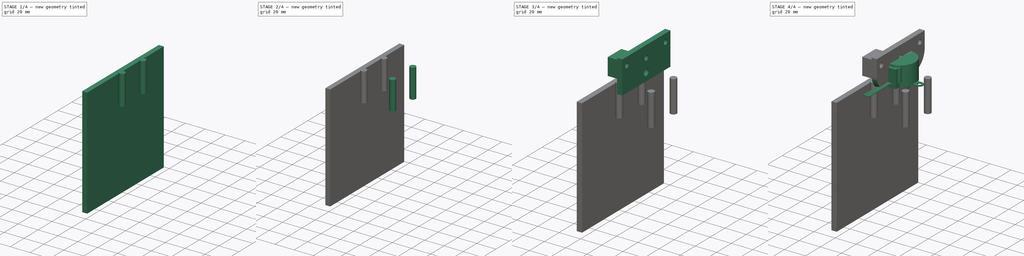
[diagram: build sequence overview — one tinted view per stage of 4, left to right]
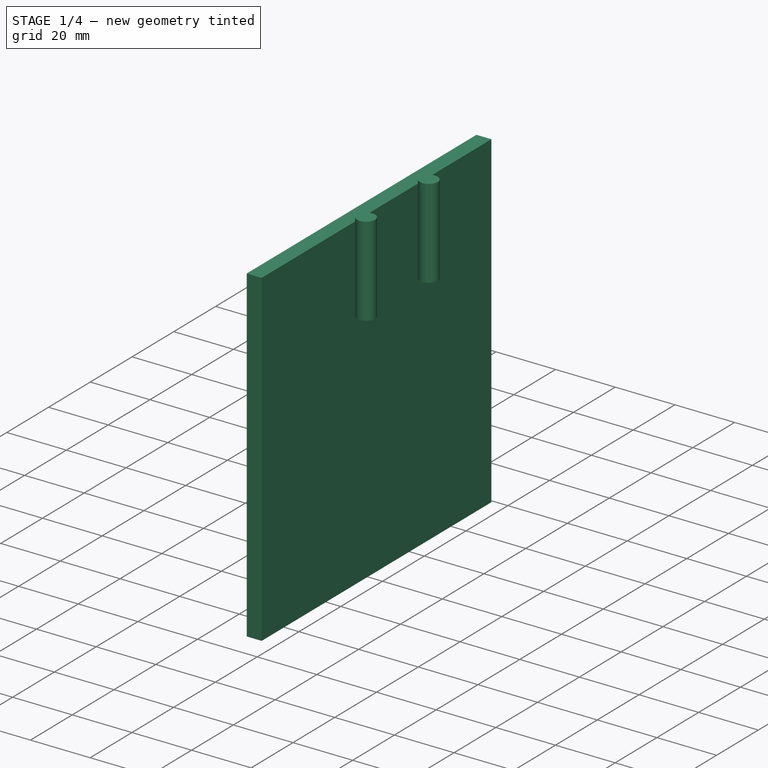
[diagram: stage 1 of 4 — iso view after this stage's code; geometry added in this stage tinted green]
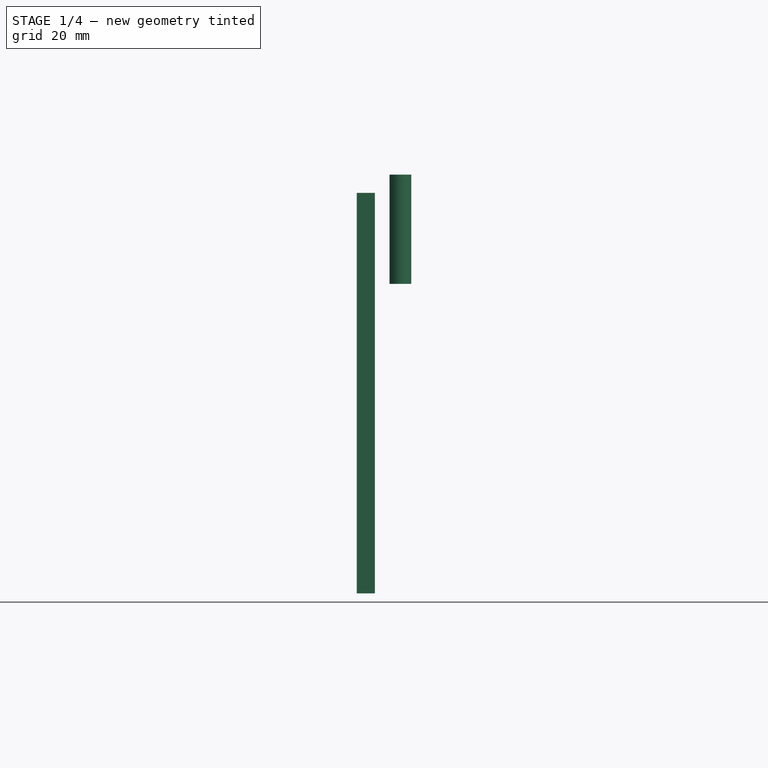
[diagram: stage 1 of 4 — front view after this stage's code; geometry added in this stage tinted green]
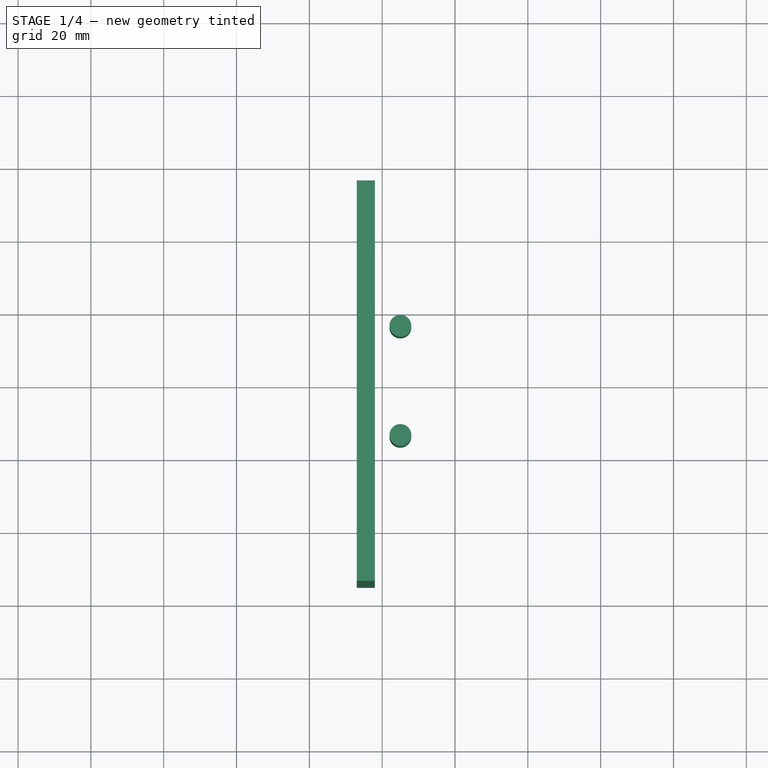
[diagram: stage 1 of 4 — top view after this stage's code; geometry added in this stage tinted green]
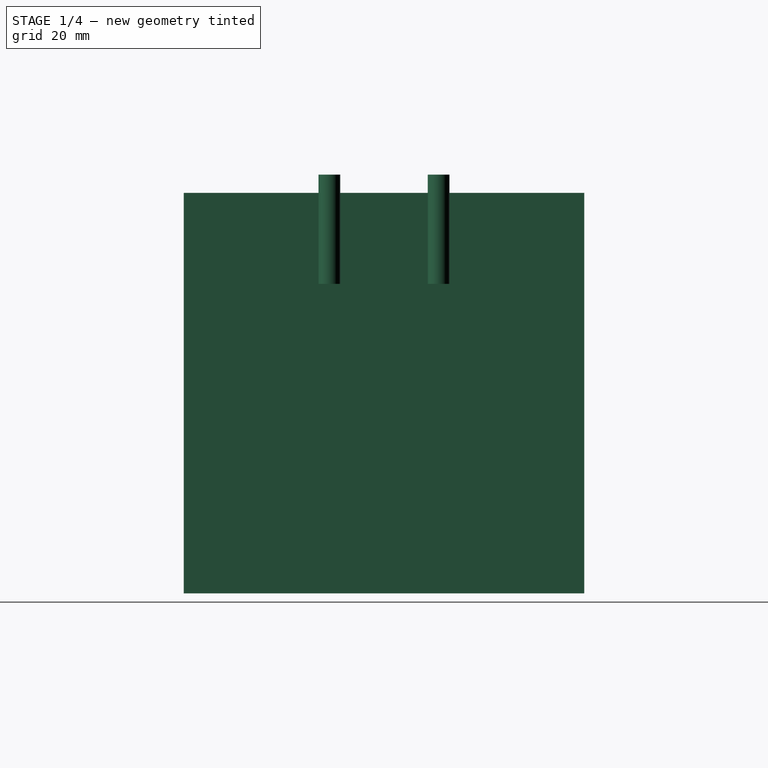
[diagram: stage 1 of 4 — right view after this stage's code; geometry added in this stage tinted green]
FCSTD DOCUMENT  (FreeCAD 0.20R29603 (Git))
Label: LEnsFocus_GearDesign_GT2
License: All rights reserved
LicenseURL: http://en.wikipedia.org/wiki/All_rights_reserved
objects: Part::Feature×13, Sketcher::SketchObject×5, Part::Cylinder×4, App::Part×3, PartDesign::Pocket×3, PartDesign::Body×2, PartDesign::Pad×2, PartDesign::FeatureBase×1, PartDesign::Fillet×1, Part::Compound×1, Part::Box×1
note: 39 computed .brp shape members not serialized (recipe doc carries the construction recipe); baked Part::Feature solids carry a one-line shape summary decoded from their .brp

FEATURE [Part::Cylinder] Cylinder002
  Angle = 360
  AttacherType = Attacher::AttachEngine3D
  FirstAngle = 0
  Height = 30
  Placement = pos=(-15,-15,-30) rot=(0,0,1;0rad)
  Radius = 3
  SecondAngle = 0
FEATURE [Part::Cylinder] Cylinder003
  Angle = 360
  AttacherType = Attacher::AttachEngine3D
  FirstAngle = 0
  Height = 30
  Placement = pos=(-15,15,-30) rot=(0,0,1;0rad)
  Radius = 3
  SecondAngle = 0
FEATURE [App::Part] Part
  Origin = -> Origin
  Placement = pos=(-27,-20,-36) rot=(0,0,1;0rad)
FEATURE [Part::Box] Box  label="Cube"
  AttacherType = Attacher::AttachEngine3D
  Height = 110
  Length = 5
  Placement = pos=(-27,-55,-115) rot=(0,0,1;0rad)
  Width = 110
FEATURE [Part::Feature] Part__Feature009  label="_DIN 912-M6x12"
  Placement = pos=(-18,40,-20) rot=(0,1,0;3.14159rad)
  shape: bbox 18 x 10.82 x 10.82 mm, 22 faces (baked)
FEATURE [Part::Feature] Part__Feature010  label="_DIN 912-M6x013"
  Placement = pos=(-18,-40,-20) rot=(0,1,0;3.14159rad)
  shape: bbox 18 x 10.82 x 10.82 mm, 22 faces (baked)
FEATURE [Part::Feature] Part__Feature011  label="_DIN 912-M6x014"
  Placement = pos=(-18,40,-100) rot=(0,1,0;3.14159rad)
  shape: bbox 18 x 10.82 x 10.82 mm, 22 faces (baked)
FEATURE [Part::Feature] Part__Feature012  label="_DIN 912-M6x015"
  Placement = pos=(-18,-40,-100) rot=(0,1,0;3.14159rad)
  shape: bbox 18 x 10.82 x 10.82 mm, 22 faces (baked)
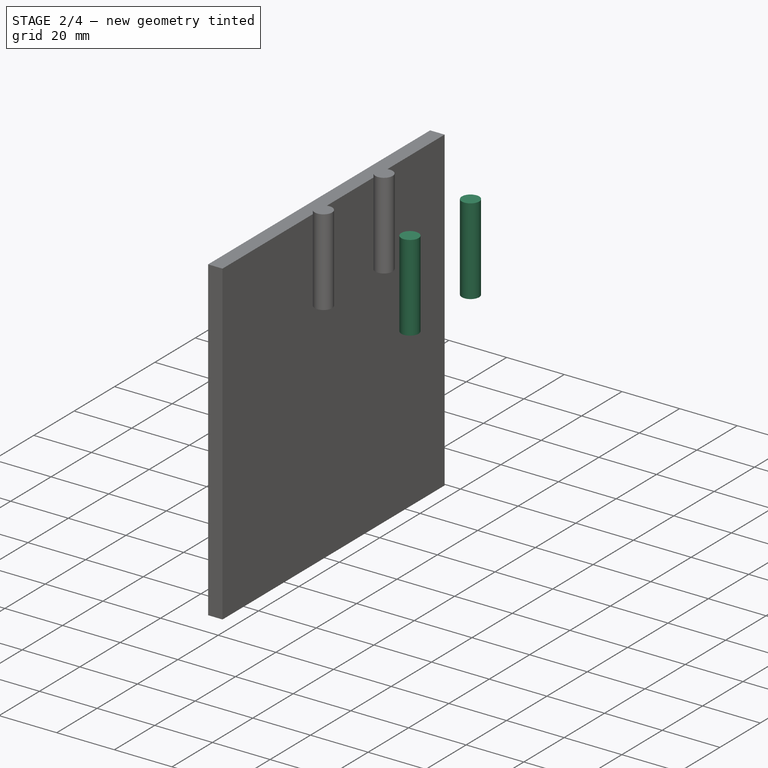
[diagram: stage 2 of 4 — iso view after this stage's code; geometry added in this stage tinted green]
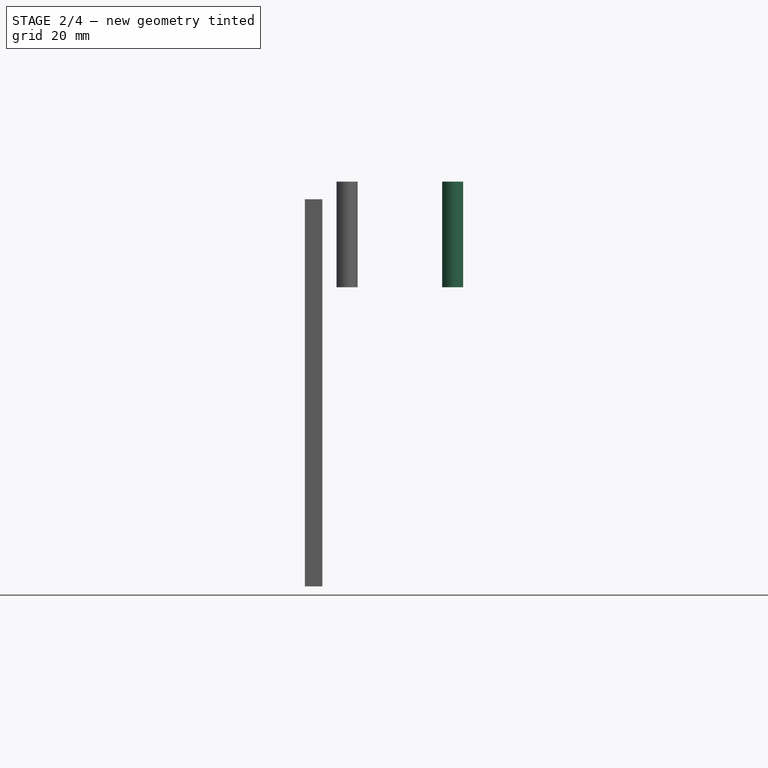
[diagram: stage 2 of 4 — front view after this stage's code; geometry added in this stage tinted green]
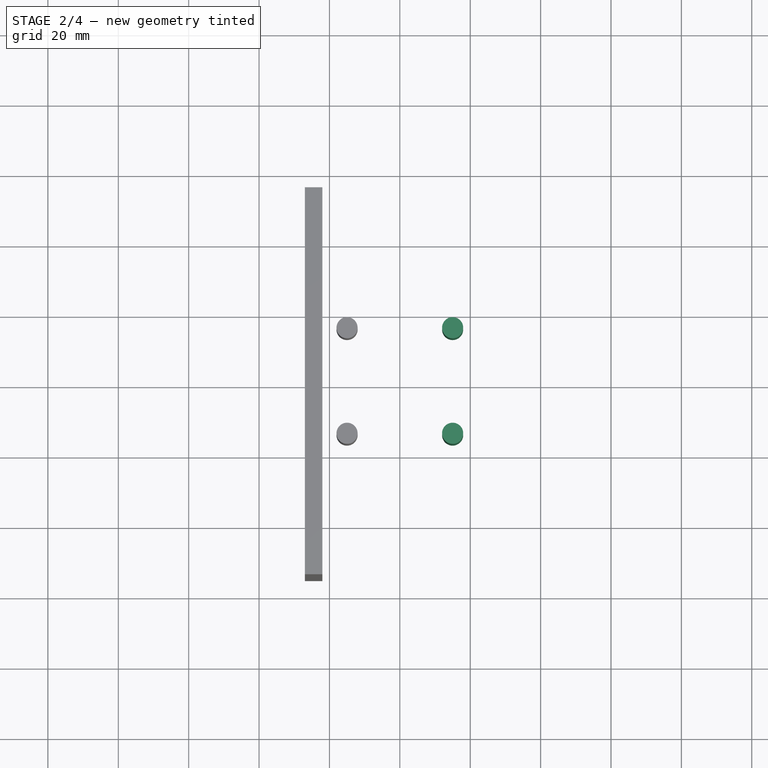
[diagram: stage 2 of 4 — top view after this stage's code; geometry added in this stage tinted green]
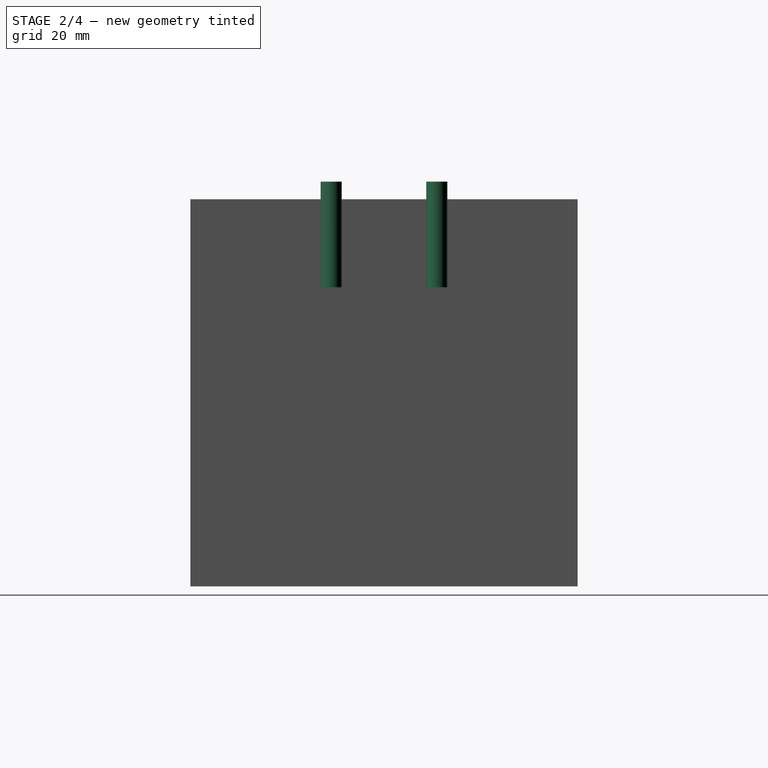
[diagram: stage 2 of 4 — right view after this stage's code; geometry added in this stage tinted green]
FEATURE [PartDesign::Body] Body  label="SystemBracket"
  Group = -> [Sketch,Pad001,Sketch001,Pad002,Sketch002,Pocket,Sketch003,Pocket001,Sketch004,Pocket002,Fillet]
  Origin = -> Origin005
  Placement = pos=(56,0,0) rot=(0,0,1;0rad)
  Tip = -> Fillet
FEATURE [Part::Feature] Part__Feature006  label="LensGear_128"
  Placement = pos=(0,0,41) rot=(0,0,1;0rad)
  shape: bbox 82 x 82 x 14 mm, 781 faces (baked)
FEATURE [Part::Feature] Part__Feature007  label="_8byj_48_bracket001 (Solid)001"
  Placement = pos=(77,1.2e-14,30) rot=(0.57735,0.57735,0.57735;2.0944rad)
  shape: bbox 25 x 60 x 15 mm, 530 faces (baked)
FEATURE [Part::Feature] Part__Feature008  label="Pocket003"
  Placement = pos=(0,-4e-15,-31) rot=(1,0,0;3.14159rad)
  shape: bbox 40 x 106 x 28 mm, 39 faces (baked)
FEATURE [Part::Cylinder] Cylinder
  Angle = 360
  AttacherType = Attacher::AttachEngine3D
  FirstAngle = 0
  Height = 30
  Placement = pos=(15,15,-30) rot=(0,0,1;0rad)
  Radius = 3
  SecondAngle = 0
FEATURE [Part::Cylinder] Cylinder001
  Angle = 360
  AttacherType = Attacher::AttachEngine3D
  FirstAngle = 0
  Height = 30
  Placement = pos=(15,-15,-30) rot=(0,0,1;0rad)
  Radius = 3
  SecondAngle = 0
FEATURE [Part::Compound] Compound  label="Distances"
  Links = -> [Cylinder,Cylinder001,Cylinder002,Cylinder003]
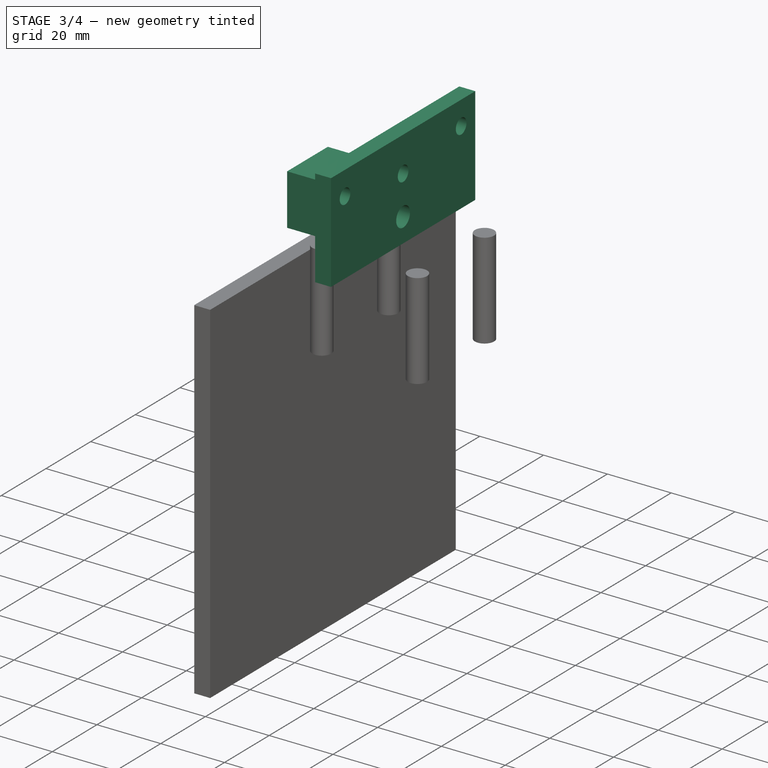
[diagram: stage 3 of 4 — iso view after this stage's code; geometry added in this stage tinted green]
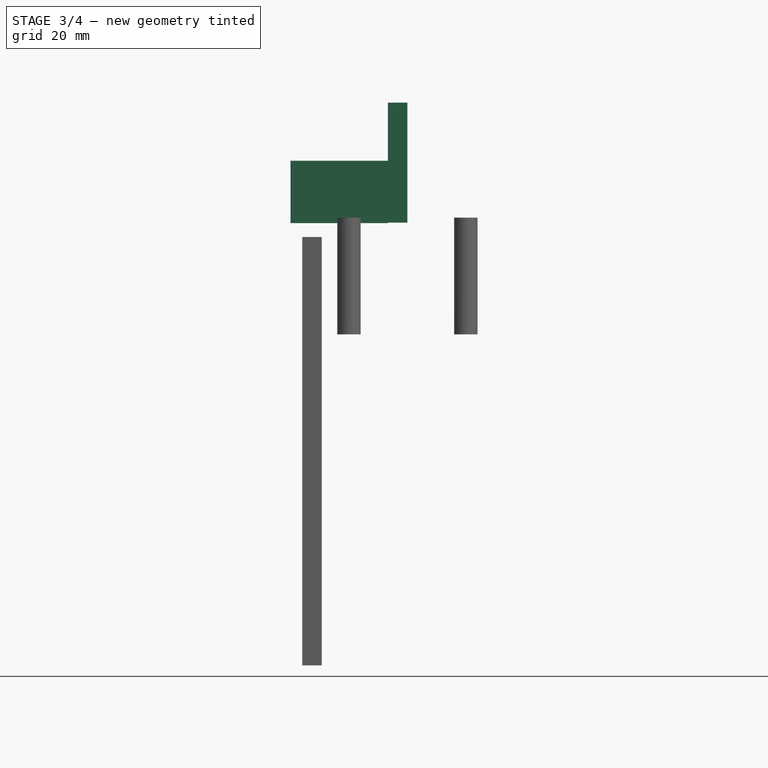
[diagram: stage 3 of 4 — front view after this stage's code; geometry added in this stage tinted green]
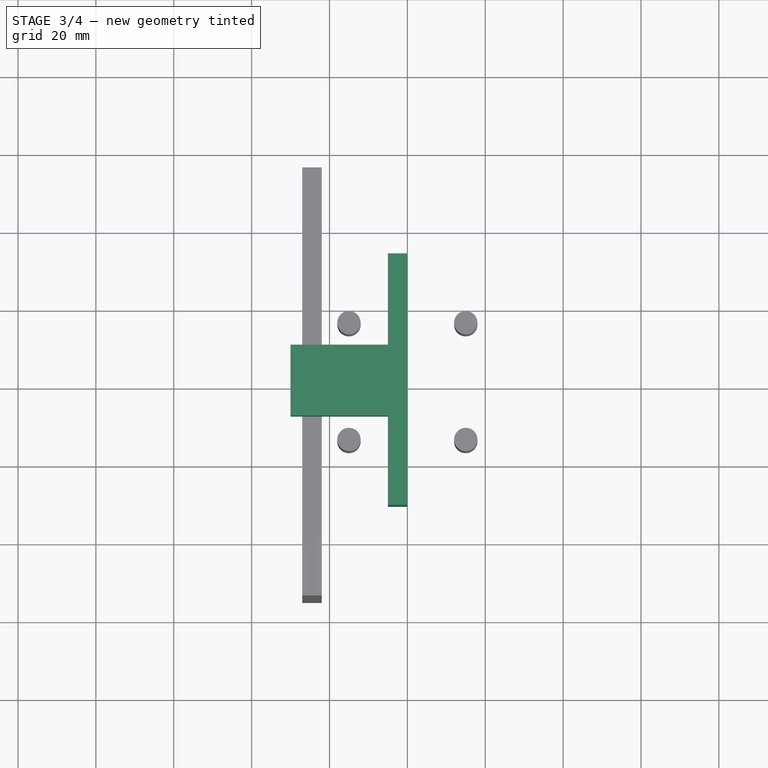
[diagram: stage 3 of 4 — top view after this stage's code; geometry added in this stage tinted green]
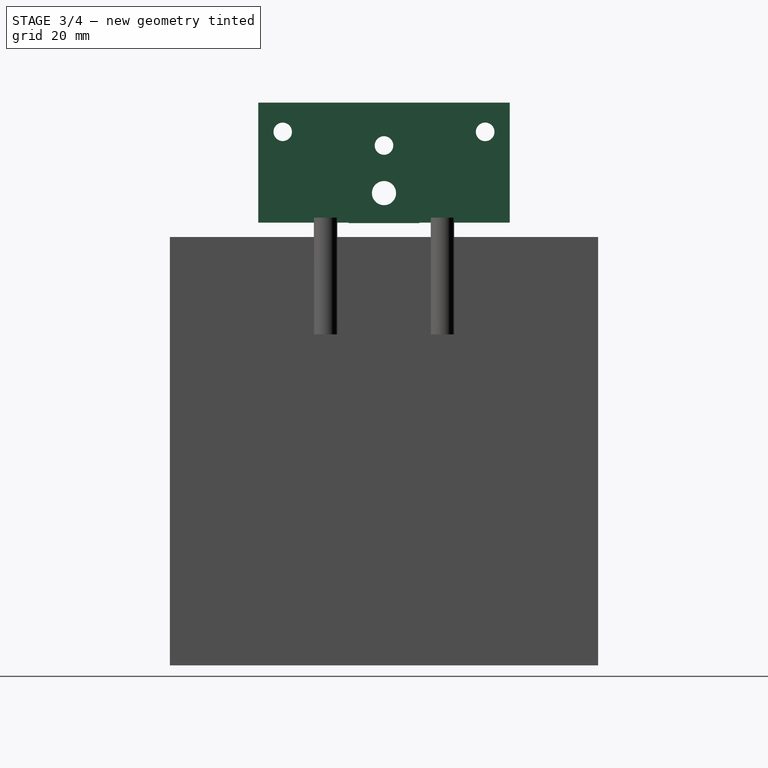
[diagram: stage 3 of 4 — right view after this stage's code; geometry added in this stage tinted green]
FEATURE [PartDesign::Body] Body002  label="Motor"
  BaseFeature = -> Part__Feature002
  Group = -> [BaseFeature]
  Origin = -> Origin003
  Placement = pos=(77.25,1.3e-14,30.5) rot=(0.707107,-0.707107,0;3.14159rad)
  Tip = -> BaseFeature
FEATURE [Part::Feature] Part__Feature003  label="M4x0.7X5mm - flat-tip Set screw"
  Placement = pos=(5.00861,-2e-15,-9.25) rot=(0.707107,0,0.707107;3.14159rad)
  shape: bbox 5.403 x 4.007 x 4.626 mm, 32 faces (baked)
FEATURE [Part::Feature] Part__Feature004  label="M4x0.7X5mm - flat-tip Set screw001"
  Placement = pos=(1.426e-11,5.00861,-9.25) rot=(-1,0,0;1.5708rad)
  shape: bbox 4.626 x 5.403 x 4.007 mm, 32 faces (baked)
FEATURE [Part::Feature] Part__Feature005  label="SOLID"
  shape: bbox 16.01 x 16 x 20 mm, 223 faces (baked)
FEATURE [App::Part] GT2_Timing_Pulley_20T_10mm___Hole_5mm_v4  label="MotorGear_20"
  Group = -> [Part__Feature003,Part__Feature004,Part__Feature005]
  Origin = -> Origin004
  Placement = pos=(69.25,0,46.25) rot=(0,0,1;0rad)
FEATURE [Sketcher::SketchObject] Sketch
  FullyConstrained = false
  MapMode = 5
  Placement = pos=(0,0,0) rot=(-0.57735,0.57735,0.57735;4.18879rad)
  Support = -> [YZ_Plane005]
  sketch-geometry (7):
    g0: LineSegment StartX=-32.2959 StartY=29.5203 StartZ=0 EndX=32.2959 EndY=29.5203 EndZ=0
    g1: LineSegment StartX=32.2959 StartY=29.5203 StartZ=0 EndX=32.2959 EndY=-1.2904 EndZ=0
    g2: LineSegment StartX=32.2959 StartY=-1.2904 StartZ=0 EndX=-32.2959 EndY=-1.2904 EndZ=0
    g3: LineSegment StartX=-32.2959 StartY=-1.2904 StartZ=0 EndX=-32.2959 EndY=29.5203 EndZ=0
    g4: Circle CenterX=-25.9824 CenterY=22.0203 CenterZ=0 NormalX=0 NormalY=0 NormalZ=1 AngleXU=0 Radius=2.38908
    g5: Circle CenterX=26.0133 CenterY=22.0203 CenterZ=0 NormalX=0 NormalY=0 NormalZ=1 AngleXU=0 Radius=2.36948
    g6: Circle CenterX=0 CenterY=18.5203 CenterZ=0 NormalX=0 NormalY=0 NormalZ=1 AngleXU=0 Radius=2.38908
  constraints (12):
    c: Coincident(g0,g1)
    c: Coincident(g1,g2)
    c: Coincident(g2,g3)
    c: Coincident(g3,g0)
    c: Horizontal(g2)
    c: Vertical(g1)
    c: Vertical(g3)
    c: Symmetric(g0,g0,g-2)
    c: PointOnObject(g6,g-2)
    c: DistanceY(g5,g0) = 7.5
    c: DistanceY(g4,g0) = 7.5
    c: DistanceY(g6,g5) = 3.5
FEATURE [PartDesign::Pad] Pad001
  Direction = (-1,2e-16,-3e-16)
  Length = 5
  Length2 = 100
  Placement = pos=(0,0,0) rot=(0.57735,0.57735,0.57735;2.0944rad)
  Profile = -> Sketch
  Type = 0
FEATURE [Sketcher::SketchObject] Sketch001
  AttachmentOffset = pos=(0,1.2,0) rot=(0,0,1;0rad)
  FullyConstrained = false
  MapMode = 5
  Placement = pos=(-5,2.1e-15,-1.2) rot=(-0.57735,-0.57735,0.57735;2.0944rad)
  Support = -> [Pad001]
  sketch-geometry (4):
    g0: LineSegment StartX=9.1 StartY=-15.7867 StartZ=0 EndX=-9.1 EndY=-15.7867 EndZ=0
    g1: LineSegment StartX=-9.1 StartY=-15.7867 StartZ=0 EndX=-9.1 EndY=0.213265 EndZ=0
    g2: LineSegment StartX=-9.1 StartY=0.213265 StartZ=0 EndX=9.1 EndY=0.213265 EndZ=0
    g3: LineSegment StartX=9.1 StartY=0.213265 StartZ=0 EndX=9.1 EndY=-15.7867 EndZ=0
  constraints (8):
    c: Coincident(g0,g1)
    c: Coincident(g1,g2)
    c: Coincident(g2,g3)
    c: Coincident(g3,g0)
    c: Horizontal(g2)
    c: Vertical(g1)
    c: Vertical(g3)
    c: Symmetric(g0,g0,g-2)
FEATURE [PartDesign::Pad] Pad002
  BaseFeature = -> Pad001
  Direction = (-1,6e-16,-4e-16)
  Length = 25
  Length2 = 100
  Placement = pos=(0,0,0) rot=(0.57735,0.57735,0.57735;2.0944rad)
  Profile = -> Sketch001
  Type = 0
FEATURE [Sketcher::SketchObject] Sketch002
  ExternalGeometry = -> [Pad002]
  FullyConstrained = true
  MapMode = 5
  Placement = pos=(-30,1.32e-14,-1.17e-14) rot=(-0.57735,-0.57735,0.57735;2.0944rad)
  Support = -> [Pad002]
  sketch-geometry (4):
    g0: LineSegment StartX=7.25 StartY=-12.5867 StartZ=0 EndX=-7.25 EndY=-12.5867 EndZ=0
    g1: LineSegment StartX=-7.25 StartY=-12.5867 StartZ=0 EndX=-7.25 EndY=-0.286735 EndZ=0
    g2: LineSegment StartX=-7.25 StartY=-0.286735 StartZ=0 EndX=7.25 EndY=-0.286735 EndZ=0
    g3: LineSegment StartX=7.25 StartY=-0.286735 StartZ=0 EndX=7.25 EndY=-12.5867 EndZ=0
  constraints (11):
    c: Coincident(g0,g1)
    c: Coincident(g1,g2)
    c: Coincident(g2,g3)
    c: Coincident(g3,g0)
    c: Horizontal(g2)
    c: Vertical(g1)
    c: Vertical(g3)
    c: Symmetric(g0,g0,g-2)
    c: DistanceX(g0,g0) = 14.5
    c: DistanceY(g-3,g0) = 2
    c: DistanceY(g0,g2) = 12.3
FEATURE [PartDesign::Pocket] Pocket
  BaseFeature = -> Pad002
  Direction = (1,-7e-16,6e-16)
  Length = 5
  Length2 = 100
  Placement = pos=(0,0,0) rot=(0.57735,0.57735,0.57735;2.0944rad)
  Profile = -> Sketch002
  Type = 0
FEATURE [Sketcher::SketchObject] Sketch003  label="VidaM6"
  ExternalGeometry = -> [Pocket]
  FullyConstrained = true
  MapMode = 5
  Placement = pos=(-25,1.53e-14,-1.08e-14) rot=(-0.57735,-0.57735,0.57735;2.0944rad)
  Support = -> [Pocket]
  sketch-geometry (1):
    g0: Circle CenterX=0 CenterY=-6.28673 CenterZ=0 NormalX=0 NormalY=0 NormalZ=1 AngleXU=0 Radius=3.1
  constraints (3):
    c: PointOnObject(g0,g-2)
    c: DistanceY(g0,g-3) = 6
    c: Diameter(g0) = 6.2
FEATURE [PartDesign::Pocket] Pocket001
  BaseFeature = -> Pocket
  Direction = (1,-8e-16,7e-16)
  Length = 5
  Length2 = 100
  Placement = pos=(0,0,0) rot=(0.57735,0.57735,0.57735;2.0944rad)
  Profile = -> Sketch003
  Type = 1
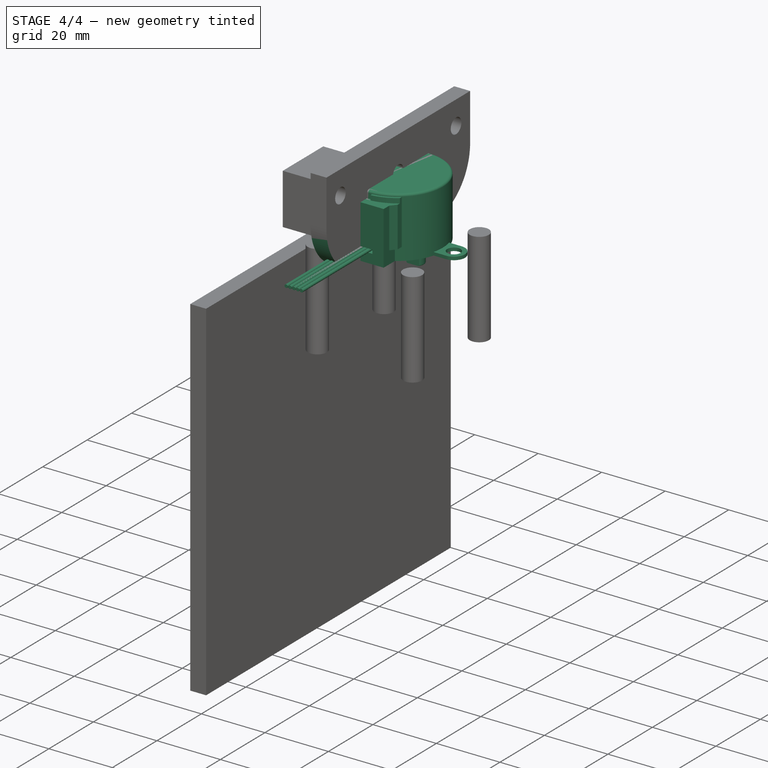
[diagram: stage 4 of 4 — iso view after this stage's code; geometry added in this stage tinted green]
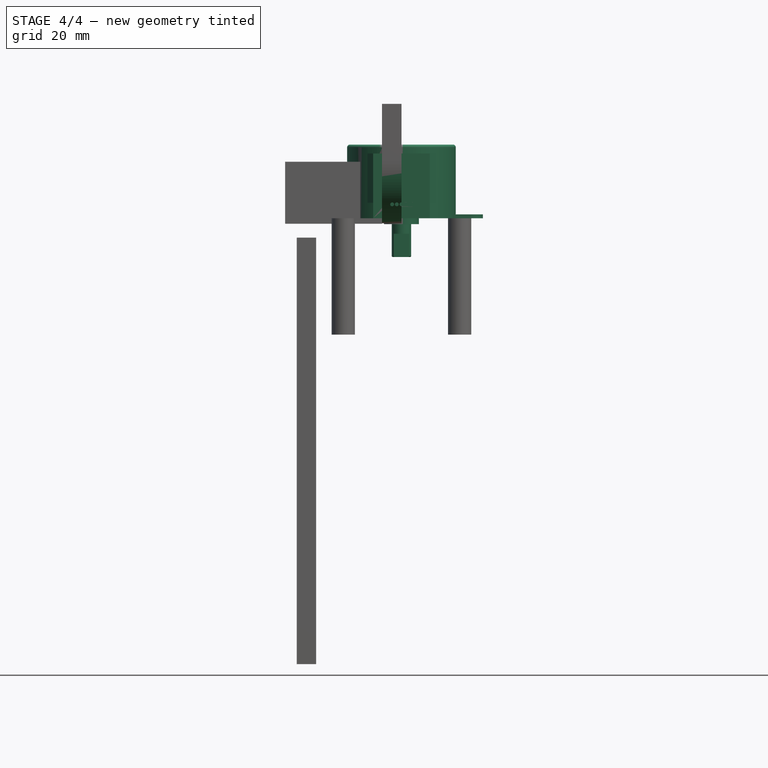
[diagram: stage 4 of 4 — front view after this stage's code; geometry added in this stage tinted green]
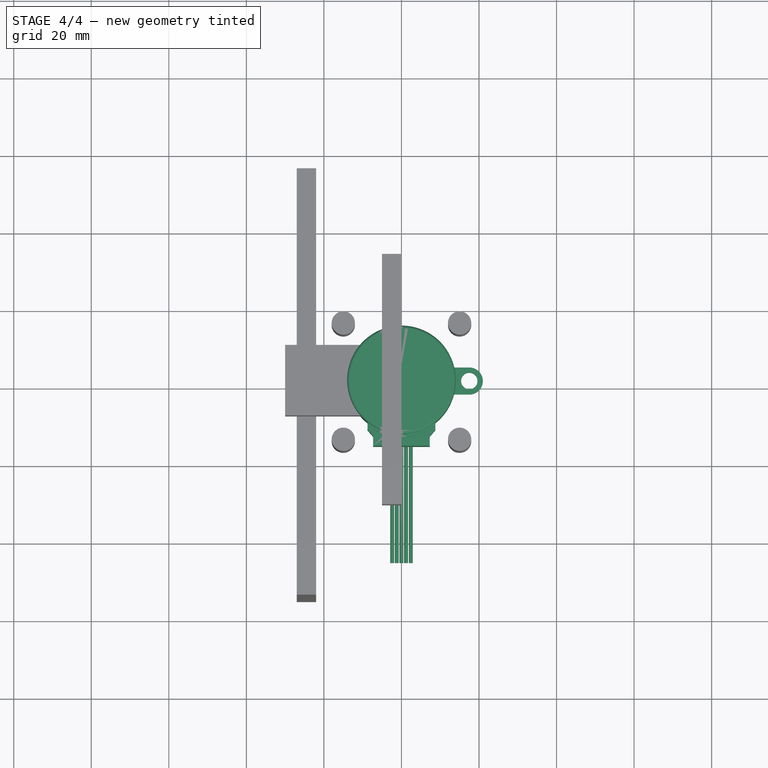
[diagram: stage 4 of 4 — top view after this stage's code; geometry added in this stage tinted green]
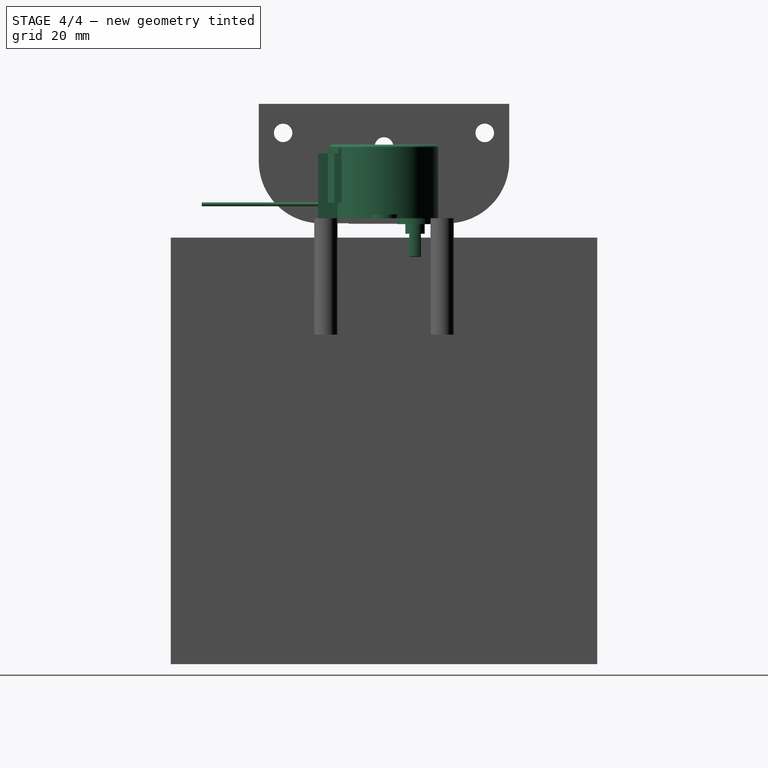
[diagram: stage 4 of 4 — right view after this stage's code; geometry added in this stage tinted green]
FEATURE [Part::Feature] Part__Feature  label="PICAM HQ"
  shape: bbox 42.11 x 52.77 x 70.25 mm, 1031 faces, 13 solids (baked)
FEATURE [Part::Feature] Part__Feature001  label="PICAM HQ LENS"
  Placement = pos=(0,0,59.9) rot=(0,1,0;1.5708rad)
  shape: bbox 30.1 x 30.19 x 4.267 mm, 3 faces (baked)
FEATURE [App::Part] PICAM_HQ  label="HQCamera_16mmLEns"
  Group = -> [Part__Feature,Part__Feature001]
  Origin = -> Origin002
  Placement = pos=(0,0,0) rot=(0,0,1;1.5708rad)
FEATURE [Part::Feature] Part__Feature002  label="Stepper Motor 28BYJ-48"
  Placement = pos=(50.4591,0.0109562,40.75) rot=(0.707107,-0.707107,0;3.14159rad)
  shape: bbox 62.15 x 42 x 29 mm, 71 faces (baked)
FEATURE [PartDesign::FeatureBase] BaseFeature
  BaseFeature = -> Part__Feature002
FEATURE [Sketcher::SketchObject] Sketch004
  ExternalGeometry = -> [Pocket001]
  FullyConstrained = true
  MapMode = 5
  Placement = pos=(0,0,0) rot=(0.57735,0.57735,0.57735;2.0944rad)
  Support = -> [Pocket001]
  sketch-geometry (1):
    g0: Circle CenterX=0 CenterY=6.28673 CenterZ=0 NormalX=0 NormalY=0 NormalZ=1 AngleXU=0 Radius=5.5
  constraints (2):
    c: Coincident(g0,g-3)
    c: Diameter(g0) = 11
FEATURE [PartDesign::Pocket] Pocket002
  BaseFeature = -> Pocket001
  Direction = (-1,1.6e-15,-8e-16)
  Length = 15
  Length2 = 100
  Placement = pos=(0,0,0) rot=(0.57735,0.57735,0.57735;2.0944rad)
  Profile = -> Sketch004
  Type = 0
FEATURE [PartDesign::Fillet] Fillet
  Base = -> Pocket002 [Edge8,Edge5]
  BaseFeature = -> Pocket002
  Placement = pos=(0,0,0) rot=(0.57735,0.57735,0.57735;2.0944rad)
  Radius = 16
  SupportTransform = false
  UseAllEdges = false
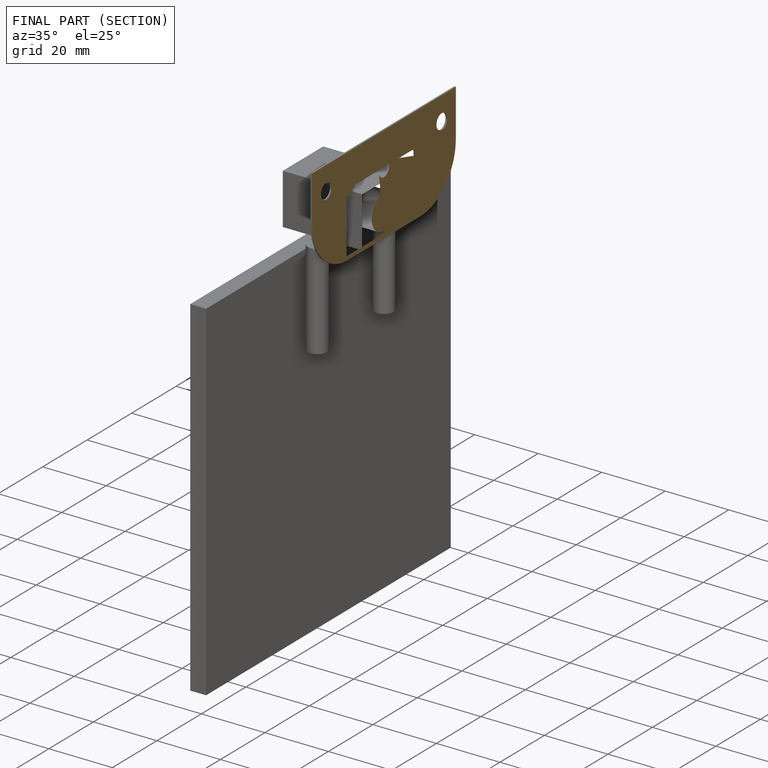
[diagram: finished part — half-section view (interior)]
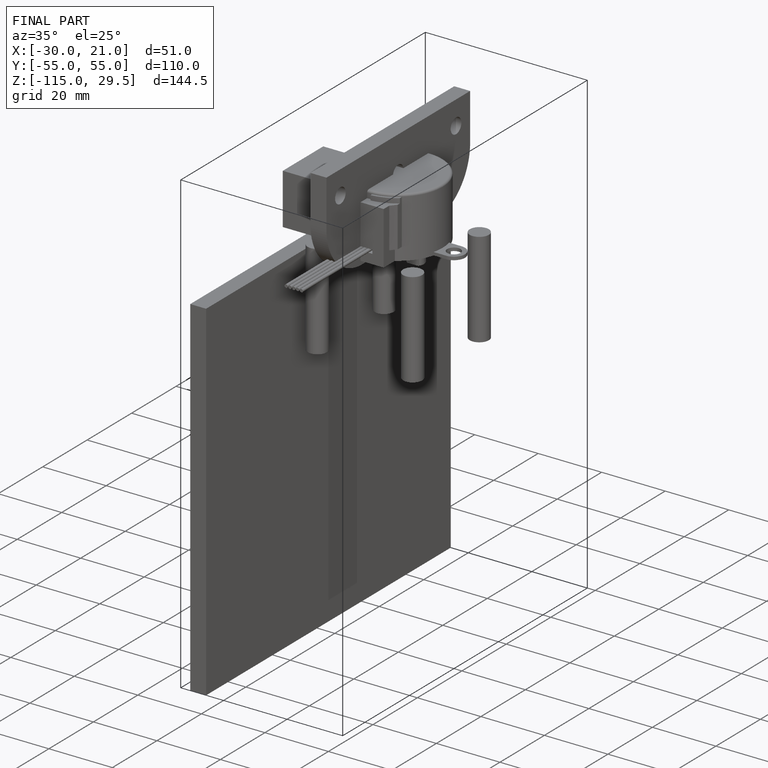
[diagram: finished part — iso view with bounding-box wireframe]
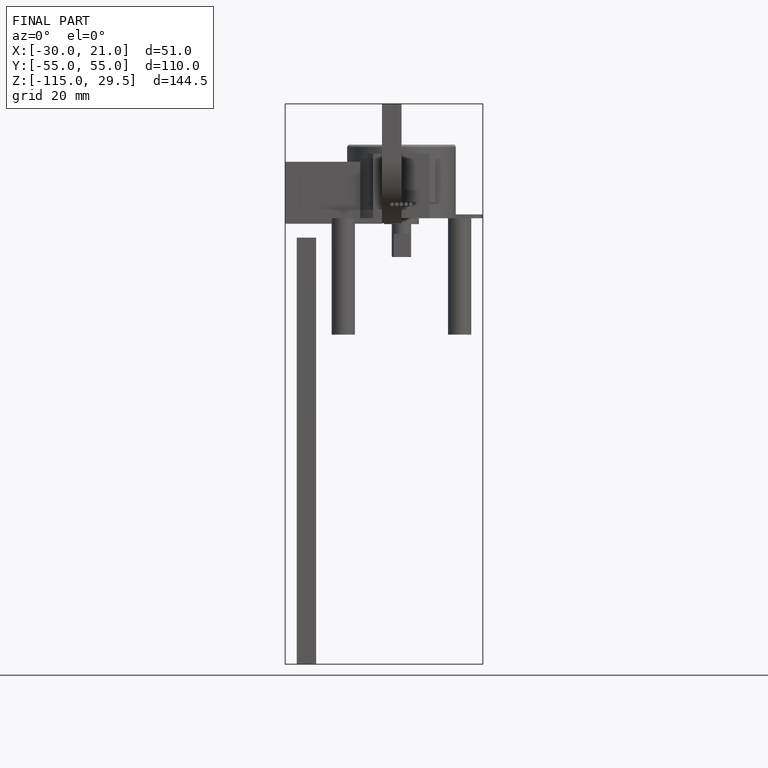
[diagram: finished part — front view with bounding-box wireframe]
